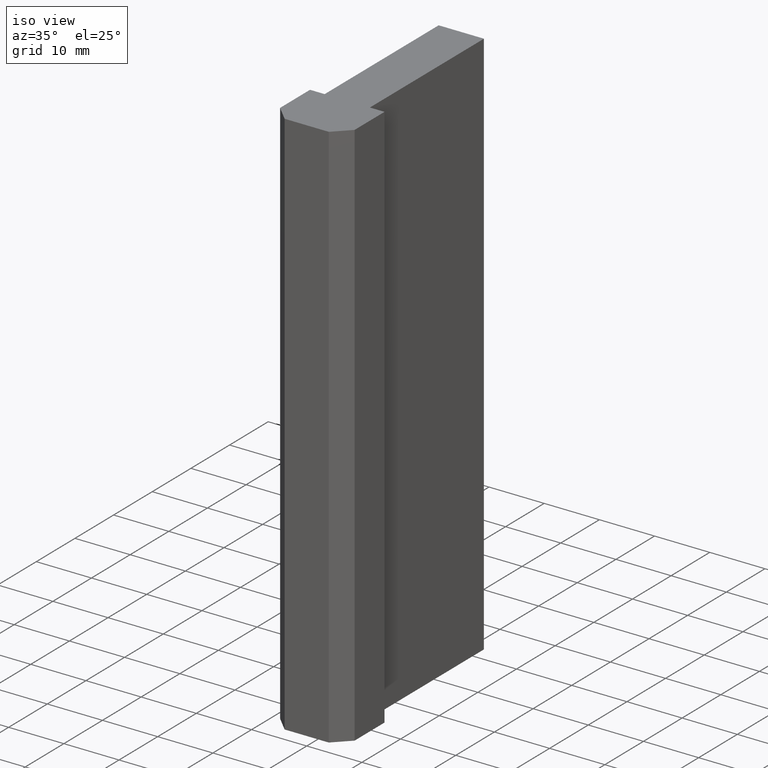
[diagram: clean part render]
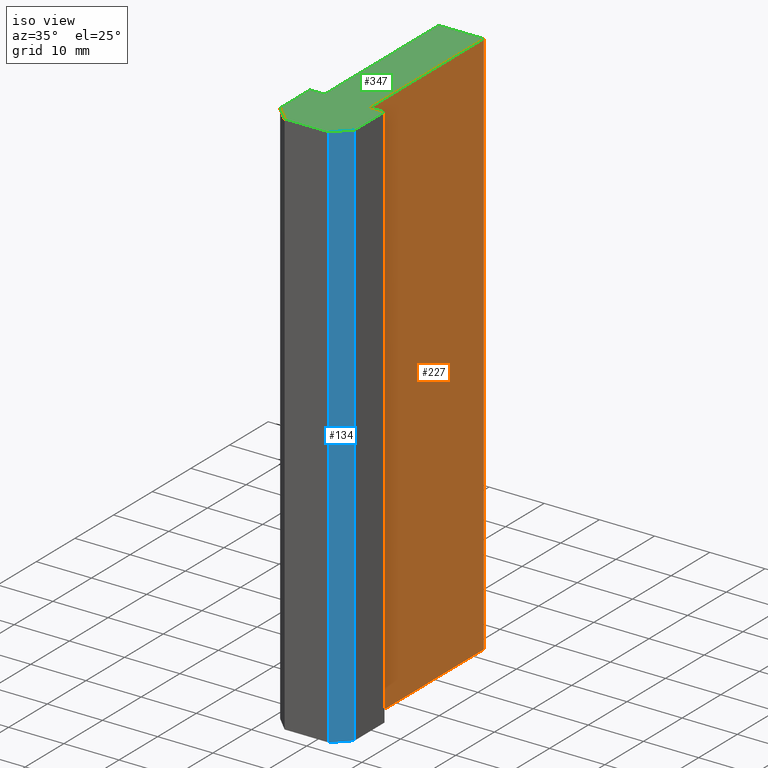
[diagram: same view with three faces highlighted in distinct colors, each labeled with its STEP entity id]
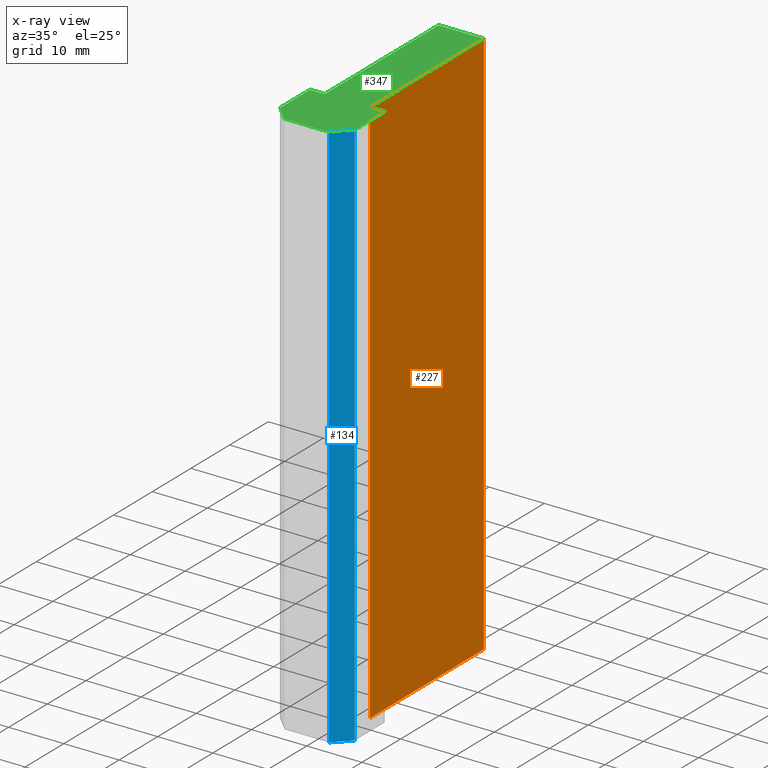
[diagram: x-ray of the same camera — body ghosted, the three highlighted faces saturated]
A machine part, iso view with three faces highlighted in distinct colors.
The next image is the same camera in x-ray (body ghosted, the three faces saturated) — at least one of them is partly hidden behind the body in this view.
Their STEP definitions:

[orange] entity #227 — the highlighted planar face has unit normal (1, 0, 0).
#171=CARTESIAN_POINT('',(4.099999999983538,10.499999999957708,0.0));
#172=VERTEX_POINT('',#171);
#179=CARTESIAN_POINT('',(4.099999999983538,10.499999999957708,100.0));
#180=VERTEX_POINT('',#179);
#181=CARTESIAN_POINT('',(4.099999999983538,10.499999999957708,0.0));
#182=DIRECTION('',(0.0,0.0,1.0));
#183=VECTOR('',#182,100.0);
#184=LINE('',#181,#183);
#185=EDGE_CURVE('',#172,#180,#184,.T.);
#197=CARTESIAN_POINT('',(4.099999999983538,10.499999999957708,0.0));
#198=DIRECTION('',(1.0,0.0,0.0));
#199=DIRECTION('',(0.0,1.0,0.0));
#200=AXIS2_PLACEMENT_3D('',#197,#198,#199);
#201=PLANE('',#200);
#202=CARTESIAN_POINT('',(4.099999999983766,39.999999999839929,0.0));
#203=VERTEX_POINT('',#202);
#204=CARTESIAN_POINT('',(4.099999999983538,10.499999999957915,0.0));
#205=DIRECTION('',(0.0,1.0,0.0));
#206=VECTOR('',#205,29.499999999882014);
#207=LINE('',#204,#206);
#208=EDGE_CURVE('',#172,#203,#207,.T.);
#209=ORIENTED_EDGE('',*,*,#208,.T.);
#210=CARTESIAN_POINT('',(4.099999999983766,39.999999999839929,100.0));
#211=VERTEX_POINT('',#210);
#212=CARTESIAN_POINT('',(4.099999999983766,39.999999999839929,0.0));
#213=DIRECTION('',(0.0,0.0,1.0));
#214=VECTOR('',#213,100.0);
#215=LINE('',#212,#214);
#216=EDGE_CURVE('',#203,#211,#215,.T.);
#217=ORIENTED_EDGE('',*,*,#216,.T.);
#218=CARTESIAN_POINT('',(4.099999999983538,10.499999999957915,100.0));
#219=DIRECTION('',(0.0,1.0,0.0));
#220=VECTOR('',#219,29.499999999882014);
#221=LINE('',#218,#220);
#222=EDGE_CURVE('',#180,#211,#221,.T.);
#223=ORIENTED_EDGE('',*,*,#222,.F.);
#224=ORIENTED_EDGE('',*,*,#185,.F.);
#225=EDGE_LOOP('',(#209,#217,#223,#224));
#226=FACE_OUTER_BOUND('',#225,.T.);
#227=ADVANCED_FACE('',(#226),#201,.T.);

[blue] entity #134 — the highlighted planar face has unit normal (0.7071, -0.7071, 0).
#78=CARTESIAN_POINT('',(3.999999999983857,-4.547474E-013,0.0));
#79=VERTEX_POINT('',#78);
#86=CARTESIAN_POINT('',(3.999999999983857,-4.547474E-013,100.0));
#87=VERTEX_POINT('',#86);
#88=CARTESIAN_POINT('',(3.999999999983857,-4.547474E-013,0.0));
#89=DIRECTION('',(0.0,0.0,1.0));
#90=VECTOR('',#89,100.0);
#91=LINE('',#88,#90);
#92=EDGE_CURVE('',#79,#87,#91,.T.);
#104=CARTESIAN_POINT('',(3.999999999983857,-4.547474E-013,0.0));
#105=DIRECTION('',(0.707106781186548,-0.707106781186548,0.0));
#106=DIRECTION('',(0.707106781186548,0.707106781186548,0.0));
#107=AXIS2_PLACEMENT_3D('',#104,#105,#106);
#108=PLANE('',#107);
#109=CARTESIAN_POINT('',(6.749999999972943,2.749999999988631,0.0));
#110=VERTEX_POINT('',#109);
#111=CARTESIAN_POINT('',(3.999999999983946,-3.654854E-013,0.0));
#112=DIRECTION('',(0.707106781186548,0.707106781186548,0.0));
#113=VECTOR('',#112,3.889087296510450);
#114=LINE('',#111,#113);
#115=EDGE_CURVE('',#79,#110,#114,.T.);
#116=ORIENTED_EDGE('',*,*,#115,.T.);
#117=CARTESIAN_POINT('',(6.749999999972943,2.749999999988631,100.0));
#118=VERTEX_POINT('',#117);
#119=CARTESIAN_POINT('',(6.749999999972943,2.749999999988631,0.0));
#120=DIRECTION('',(0.0,0.0,1.0));
#121=VECTOR('',#120,100.0);
#122=LINE('',#119,#121);
#123=EDGE_CURVE('',#110,#118,#122,.T.);
#124=ORIENTED_EDGE('',*,*,#123,.T.);
#125=CARTESIAN_POINT('',(3.999999999983946,-3.654854E-013,100.0));
#126=DIRECTION('',(0.707106781186548,0.707106781186548,0.0));
#127=VECTOR('',#126,3.889087296510450);
#128=LINE('',#125,#127);
#129=EDGE_CURVE('',#87,#118,#128,.T.);
#130=ORIENTED_EDGE('',*,*,#129,.F.);
#131=ORIENTED_EDGE('',*,*,#92,.F.);
#132=EDGE_LOOP('',(#116,#124,#130,#131));
#133=FACE_OUTER_BOUND('',#132,.T.);
#134=ADVANCED_FACE('',(#133),#108,.T.);

[green] entity #347 — the highlighted planar face has unit normal (0, 0, 1).
#17=CARTESIAN_POINT('',(-6.749999999973170,2.749999999989086,100.0));
#18=VERTEX_POINT('',#17);
#25=CARTESIAN_POINT('',(-6.749999999972943,10.499999999957708,100.0));
#26=VERTEX_POINT('',#25);
#27=CARTESIAN_POINT('',(-6.749999999972943,10.499999999957630,100.0));
#28=DIRECTION('',(0.0,-1.0,0.0));
#29=VECTOR('',#28,7.749999999968999);
#30=LINE('',#27,#29);
#31=EDGE_CURVE('',#26,#18,#30,.T.);
#55=CARTESIAN_POINT('',(-3.999999999983857,0.0,100.0));
#56=VERTEX_POINT('',#55);
#63=CARTESIAN_POINT('',(-6.749999999973081,2.749999999988997,100.0));
#64=DIRECTION('',(0.707106781186548,-0.707106781186547,0.0));
#65=VECTOR('',#64,3.889087296510451);
#66=LINE('',#63,#65);
#67=EDGE_CURVE('',#18,#56,#66,.T.);
#86=CARTESIAN_POINT('',(3.999999999983857,-4.547474E-013,100.0));
#87=VERTEX_POINT('',#86);
#94=CARTESIAN_POINT('',(-3.999999999983911,0.0,100.0));
#95=DIRECTION('',(1.0,0.0,0.0));
#96=VECTOR('',#95,7.999999999967995);
#97=LINE('',#94,#96);
#98=EDGE_CURVE('',#56,#87,#97,.T.);
#117=CARTESIAN_POINT('',(6.749999999972943,2.749999999988631,100.0));
#118=VERTEX_POINT('',#117);
#125=CARTESIAN_POINT('',(3.999999999983946,-3.654854E-013,100.0));
#126=DIRECTION('',(0.707106781186548,0.707106781186548,0.0));
#127=VECTOR('',#126,3.889087296510450);
#128=LINE('',#125,#127);
#129=EDGE_CURVE('',#87,#118,#128,.T.);
#148=CARTESIAN_POINT('',(6.749999999972943,10.499999999957708,100.0));
#149=VERTEX_POINT('',#148);
#156=CARTESIAN_POINT('',(6.749999999972943,2.749999999988710,100.0));
#157=DIRECTION('',(0.0,1.0,0.0));
#158=VECTOR('',#157,7.749999999968998);
#159=LINE('',#156,#158);
#160=EDGE_CURVE('',#118,#149,#159,.T.);
#179=CARTESIAN_POINT('',(4.099999999983538,10.499999999957708,100.0));
#180=VERTEX_POINT('',#179);
#187=CARTESIAN_POINT('',(6.749999999972937,10.499999999957708,100.0));
#188=DIRECTION('',(-1.0,0.0,0.0));
#189=VECTOR('',#188,2.649999999989399);
#190=LINE('',#187,#189);
#191=EDGE_CURVE('',#149,#180,#190,.T.);
#210=CARTESIAN_POINT('',(4.099999999983766,39.999999999839929,100.0));
#211=VERTEX_POINT('',#210);
#218=CARTESIAN_POINT('',(4.099999999983538,10.499999999957915,100.0));
#219=DIRECTION('',(0.0,1.0,0.0));
#220=VECTOR('',#219,29.499999999882014);
#221=LINE('',#218,#220);
#222=EDGE_CURVE('',#180,#211,#221,.T.);
#241=CARTESIAN_POINT('',(-4.099999999983538,39.999999999839929,100.0));
#242=VERTEX_POINT('',#241);
#249=CARTESIAN_POINT('',(4.099999999983671,39.999999999839929,100.0));
#250=DIRECTION('',(-1.0,0.0,0.0));
#251=VECTOR('',#250,8.199999999967210);
#252=LINE('',#249,#251);
#253=EDGE_CURVE('',#211,#242,#252,.T.);
#272=CARTESIAN_POINT('',(-4.099999999983538,10.499999999957708,100.0));
#273=VERTEX_POINT('',#272);
#280=CARTESIAN_POINT('',(-4.099999999983538,39.999999999839723,100.0));
#281=DIRECTION('',(0.0,-1.0,0.0));
#282=VECTOR('',#281,29.499999999882014);
#283=LINE('',#280,#282);
#284=EDGE_CURVE('',#242,#273,#283,.T.);
#302=CARTESIAN_POINT('',(-4.099999999983544,10.499999999957708,100.0));
#303=DIRECTION('',(-1.0,0.0,0.0));
#304=VECTOR('',#303,2.649999999989399);
#305=LINE('',#302,#304);
#306=EDGE_CURVE('',#273,#26,#305,.T.);
#330=CARTESIAN_POINT('',(-8.100004734822051,-4.000004734819868,100.0));
#331=DIRECTION('',(0.0,0.0,1.0));
#332=DIRECTION('',(1.0,0.0,0.0));
#333=AXIS2_PLACEMENT_3D('',#330,#331,#332);
#334=PLANE('',#333);
#335=ORIENTED_EDGE('',*,*,#31,.T.);
#336=ORIENTED_EDGE('',*,*,#67,.T.);
#337=ORIENTED_EDGE('',*,*,#98,.T.);
#338=ORIENTED_EDGE('',*,*,#129,.T.);
#339=ORIENTED_EDGE('',*,*,#160,.T.);
#340=ORIENTED_EDGE('',*,*,#191,.T.);
#341=ORIENTED_EDGE('',*,*,#222,.T.);
#342=ORIENTED_EDGE('',*,*,#253,.T.);
#343=ORIENTED_EDGE('',*,*,#284,.T.);
#344=ORIENTED_EDGE('',*,*,#306,.T.);
#345=EDGE_LOOP('',(#335,#336,#337,#338,#339,#340,#341,#342,#343,#344));
#346=FACE_OUTER_BOUND('',#345,.T.);
#347=ADVANCED_FACE('',(#346),#334,.T.);